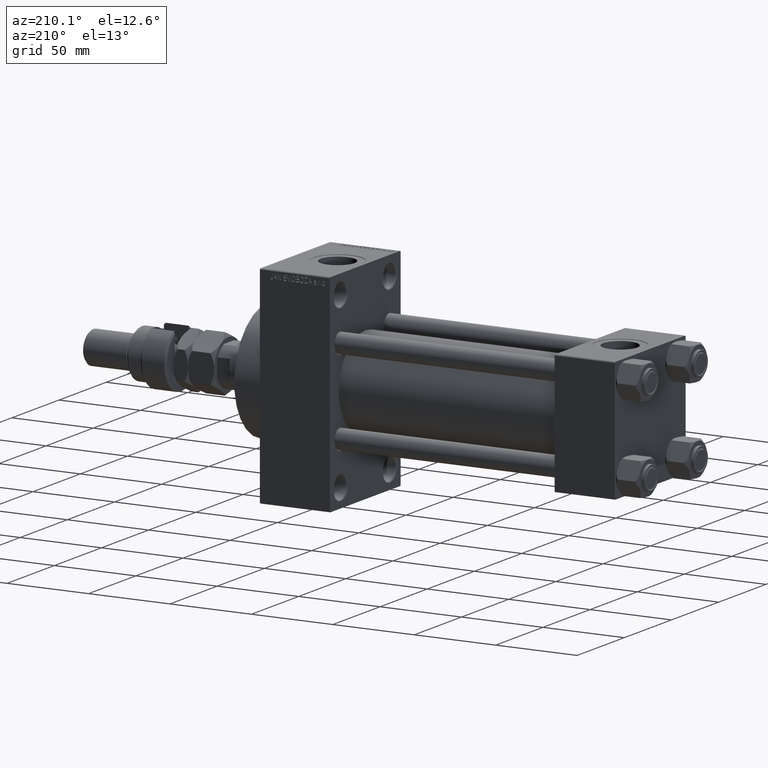
[diagram: clean part render]
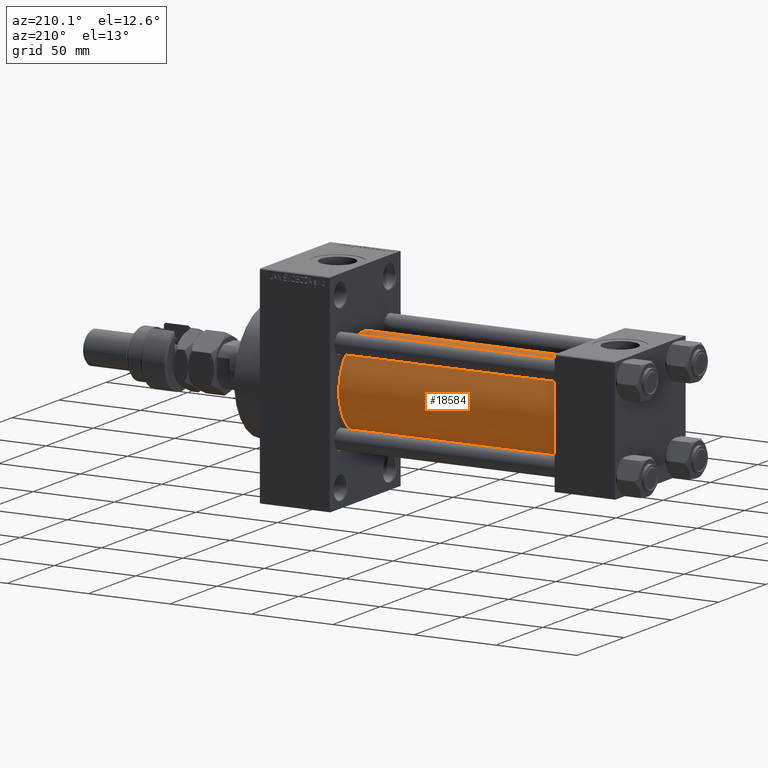
[diagram: same view with one face highlighted and labeled with its STEP entity id]
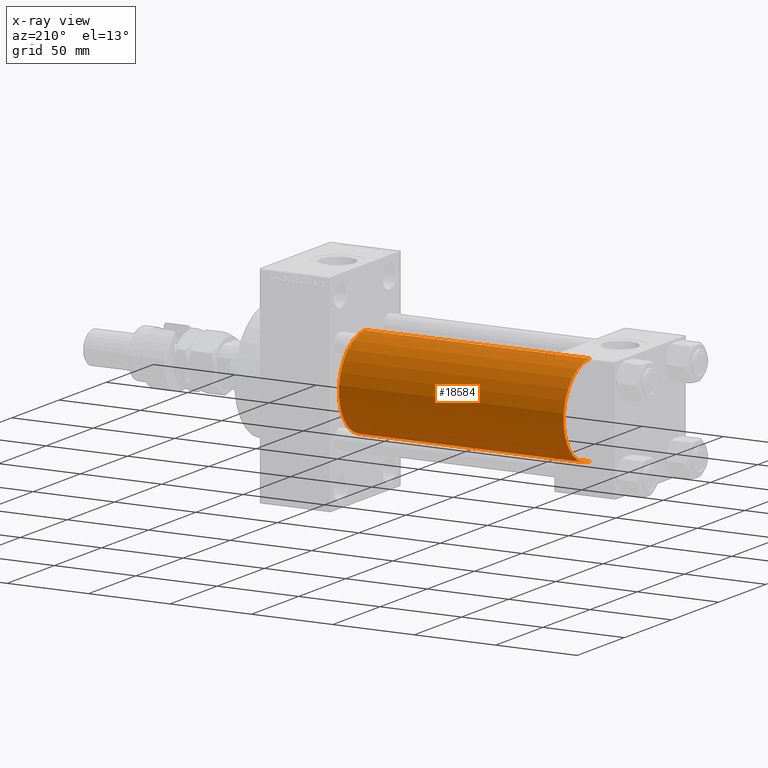
[diagram: x-ray of the same camera — body ghosted, the highlighted face saturated]
A machine part, auxiliary view. The second image highlights one B-rep face of the part: STEP entity #18584.
The next image is the same camera in x-ray: the body ghosted, the highlighted face saturated — about 0% of this face is hidden behind the body in this view.
In plain terms, the highlighted cylindrical surface (partial cylindrical patch) has radius 28 mm, axis along (-1, -0, -0).
Its self-contained STEP definition (entity closure, byte-faithful):
#812 = LINE ( 'NONE', #20626, #30419 ) ;
#1800 = FACE_OUTER_BOUND ( 'NONE', #16214, .T. ) ;
#2988 = CARTESIAN_POINT ( 'NONE',  ( 175.0000000000000284, -2.602085213965210642E-15, 0.000000000000000000 ) ) ;
#7408 = CARTESIAN_POINT ( 'NONE',  ( 37.00000000000000711, 8.269258236473784371E-16, -28.00000000000000000 ) ) ;
#8142 = CARTESIAN_POINT ( 'NONE',  ( 37.00000000000000711, -2.602085213965210642E-15, 28.00000000000000000 ) ) ;
#8714 = EDGE_CURVE ( 'NONE', #14646, #46907, #16235, .T. ) ;
#9410 = EDGE_CURVE ( 'NONE', #46907, #35512, #19823, .T. ) ;
#10012 = ORIENTED_EDGE ( 'NONE', *, *, #8714, .T. ) ;
#11486 = ORIENTED_EDGE ( 'NONE', *, *, #37742, .F. ) ;
#14646 = VERTEX_POINT ( 'NONE', #36935 ) ;
#16214 = EDGE_LOOP ( 'NONE', ( #33985, #10012, #39834, #11486 ) ) ;
#16235 = LINE ( 'NONE', #20294, #40943 ) ;
#17055 = DIRECTION ( 'NONE',  ( -1.000000000000000000, -0.000000000000000000, -0.000000000000000000 ) ) ;
#18287 = EDGE_CURVE ( 'NONE', #14646, #24259, #22487, .T. ) ;
#18584 = ADVANCED_FACE ( 'NONE', ( #1800 ), #28253, .T. ) ;
#19823 = CIRCLE ( 'NONE', #35239, 28.00000000000000000 ) ;
#20294 = CARTESIAN_POINT ( 'NONE',  ( 175.0000000000000284, 8.269258236473784371E-16, -28.00000000000000000 ) ) ;
#20626 = CARTESIAN_POINT ( 'NONE',  ( 175.0000000000000284, -2.602085213965210642E-15, 28.00000000000000000 ) ) ;
#22487 = CIRCLE ( 'NONE', #43607, 28.00000000000000000 ) ;
#22912 = DIRECTION ( 'NONE',  ( -1.000000000000000000, -0.000000000000000000, -0.000000000000000000 ) ) ;
#24259 = VERTEX_POINT ( 'NONE', #49885 ) ;
#26501 = DIRECTION ( 'NONE',  ( 0.000000000000000000, 0.000000000000000000, 1.000000000000000000 ) ) ;
#26869 = DIRECTION ( 'NONE',  ( 1.000000000000000000, 0.000000000000000000, 0.000000000000000000 ) ) ;
#28253 = CYLINDRICAL_SURFACE ( 'NONE', #46820, 28.00000000000000000 ) ;
#30063 = CARTESIAN_POINT ( 'NONE',  ( 37.00000000000000711, -2.602085213965210642E-15, 0.000000000000000000 ) ) ;
#30419 = VECTOR ( 'NONE', #40206, 1000.000000000000000 ) ;
#32051 = DIRECTION ( 'NONE',  ( 0.000000000000000000, 0.000000000000000000, 1.000000000000000000 ) ) ;
#32308 = CARTESIAN_POINT ( 'NONE',  ( 175.0000000000000284, -2.602085213965210642E-15, 0.000000000000000000 ) ) ;
#33985 = ORIENTED_EDGE ( 'NONE', *, *, #18287, .F. ) ;
#35239 = AXIS2_PLACEMENT_3D ( 'NONE', #30063, #38173, #26501 ) ;
#35512 = VERTEX_POINT ( 'NONE', #8142 ) ;
#36935 = CARTESIAN_POINT ( 'NONE',  ( 175.0000000000000284, 8.269258236473784371E-16, -28.00000000000000000 ) ) ;
#37742 = EDGE_CURVE ( 'NONE', #24259, #35512, #812, .T. ) ;
#38173 = DIRECTION ( 'NONE',  ( 1.000000000000000000, -0.000000000000000000, 0.000000000000000000 ) ) ;
#39834 = ORIENTED_EDGE ( 'NONE', *, *, #9410, .T. ) ;
#40206 = DIRECTION ( 'NONE',  ( -1.000000000000000000, -0.000000000000000000, -0.000000000000000000 ) ) ;
#40943 = VECTOR ( 'NONE', #22912, 1000.000000000000000 ) ;
#43607 = AXIS2_PLACEMENT_3D ( 'NONE', #2988, #26869, #45437 ) ;
#45437 = DIRECTION ( 'NONE',  ( 0.000000000000000000, 0.000000000000000000, -1.000000000000000000 ) ) ;
#46820 = AXIS2_PLACEMENT_3D ( 'NONE', #32308, #17055, #32051 ) ;
#46907 = VERTEX_POINT ( 'NONE', #7408 ) ;
#49885 = CARTESIAN_POINT ( 'NONE',  ( 175.0000000000000284, -2.602085213965210642E-15, 28.00000000000000000 ) ) ;